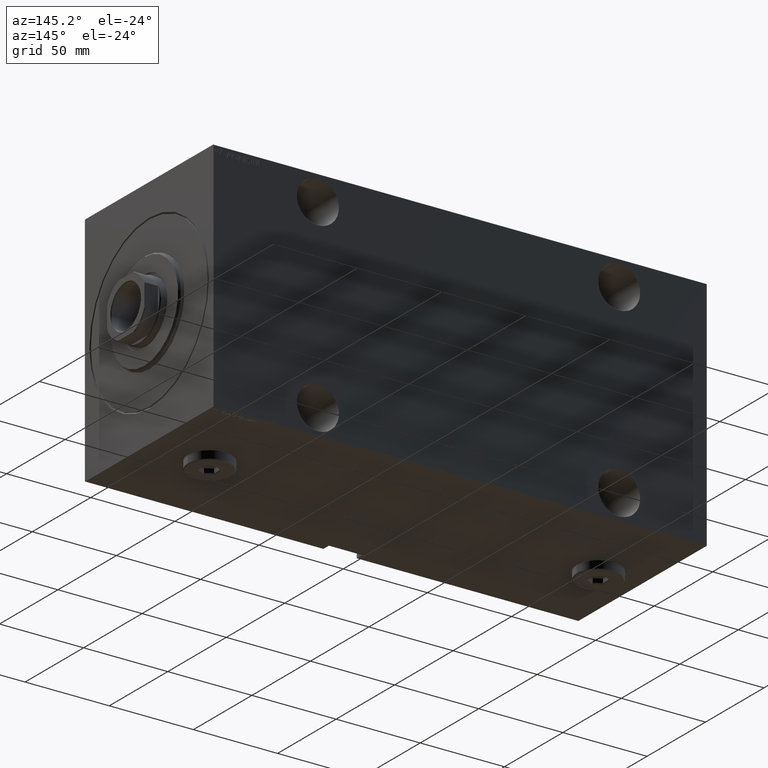
[diagram: clean part render]
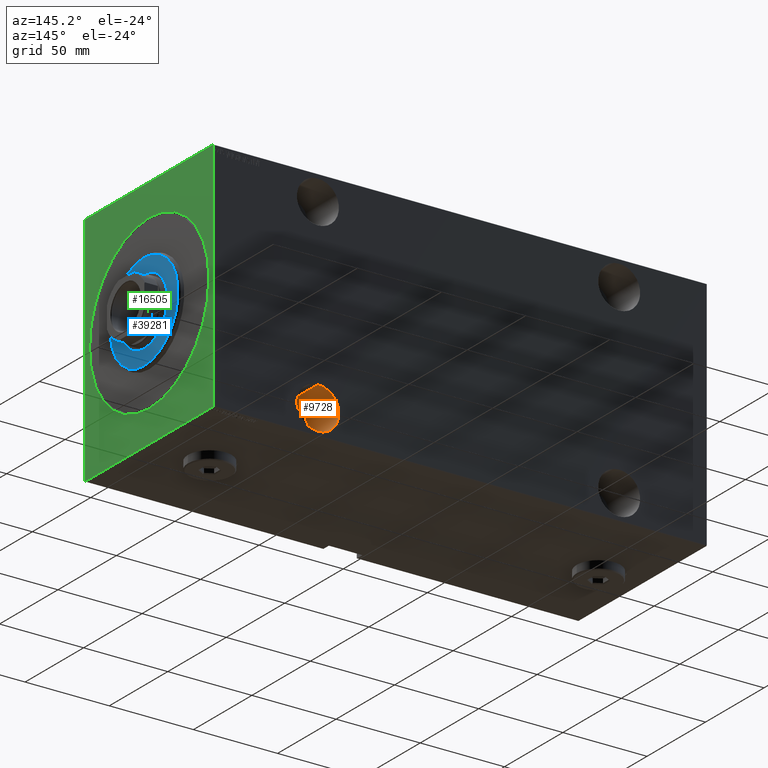
[diagram: same view with three faces highlighted in distinct colors, each labeled with its STEP entity id]
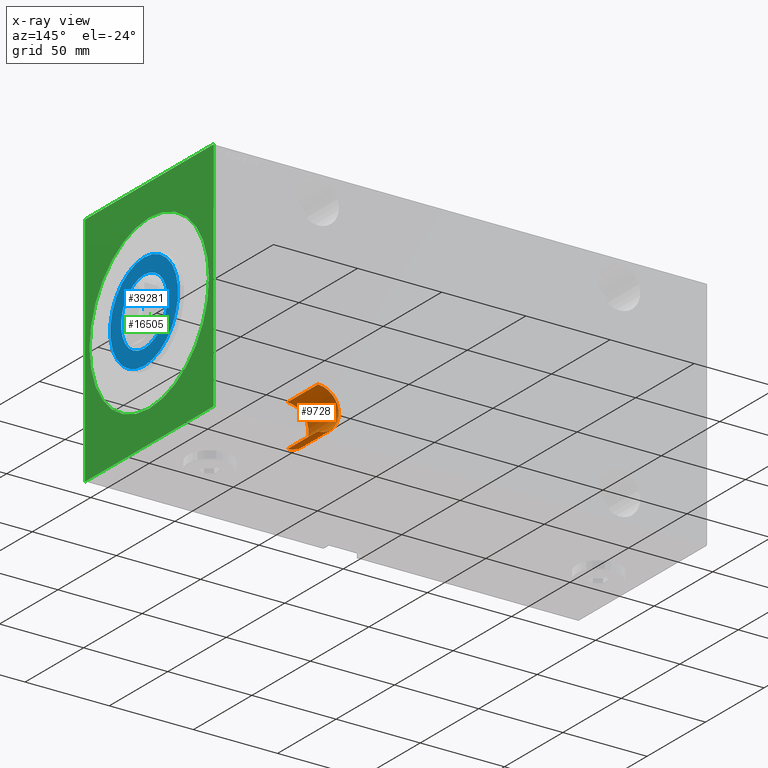
[diagram: x-ray of the same camera — body ghosted, the three highlighted faces saturated]
A machine part, auxiliary view with three faces highlighted in distinct colors.
The next image is the same camera in x-ray (body ghosted, the three faces saturated) — at least one of them is partly hidden behind the body in this view.
Their STEP definitions:

[orange] entity #9728 — the highlighted cylindrical surface (edge-blend (fillet) strip) has radius 12.5 mm, axis along (0, 1, -0).
#270 = ORIENTED_EDGE ( 'NONE', *, *, #5358, .F. ) ;
#1605 = EDGE_LOOP ( 'NONE', ( #33173, #270, #13426, #40558 ) ) ;
#1936 = CARTESIAN_POINT ( 'NONE',  ( 61.99999999999998579, -28.99999999999999289, -42.49999999999999289 ) ) ;
#4076 = VERTEX_POINT ( 'NONE', #35911 ) ;
#4620 = CIRCLE ( 'NONE', #26823, 12.49999999999999645 ) ;
#4919 = VERTEX_POINT ( 'NONE', #25877 ) ;
#5358 = EDGE_CURVE ( 'NONE', #4919, #14226, #39745, .T. ) ;
#5719 = EDGE_CURVE ( 'NONE', #39864, #4076, #4620, .T. ) ;
#5781 = DIRECTION ( 'NONE',  ( 0.000000000000000000, 0.000000000000000000, -1.000000000000000000 ) ) ;
#9018 = CARTESIAN_POINT ( 'NONE',  ( 61.99999999999998579, -54.99999999999999289, -54.99999999999999289 ) ) ;
#9728 = ADVANCED_FACE ( 'NONE', ( #31298 ), #35570, .F. ) ;
#12587 = AXIS2_PLACEMENT_3D ( 'NONE', #17826, #38923, #42050 ) ;
#12727 = DIRECTION ( 'NONE',  ( -0.000000000000000000, -1.000000000000000000, -0.000000000000000000 ) ) ;
#13426 = ORIENTED_EDGE ( 'NONE', *, *, #33145, .T. ) ;
#14226 = VERTEX_POINT ( 'NONE', #1936 ) ;
#17826 = CARTESIAN_POINT ( 'NONE',  ( 61.99999999999998579, -28.99999999999999289, -54.99999999999999289 ) ) ;
#20340 = DIRECTION ( 'NONE',  ( 0.000000000000000000, -1.000000000000000000, 0.000000000000000000 ) ) ;
#21652 = CARTESIAN_POINT ( 'NONE',  ( 61.99999999999998579, -28.99999999999999289, -42.49999999999999289 ) ) ;
#21816 = AXIS2_PLACEMENT_3D ( 'NONE', #36531, #20340, #5781 ) ;
#25877 = CARTESIAN_POINT ( 'NONE',  ( 61.99999999999998579, -28.99999999999999289, -67.49999999999998579 ) ) ;
#26823 = AXIS2_PLACEMENT_3D ( 'NONE', #9018, #43120, #42677 ) ;
#29593 = LINE ( 'NONE', #29816, #33836 ) ;
#29816 = CARTESIAN_POINT ( 'NONE',  ( 61.99999999999998579, -28.99999999999999289, -67.49999999999998579 ) ) ;
#31298 = FACE_OUTER_BOUND ( 'NONE', #1605, .T. ) ;
#31760 = LINE ( 'NONE', #21652, #35554 ) ;
#33145 = EDGE_CURVE ( 'NONE', #4919, #39864, #29593, .T. ) ;
#33173 = ORIENTED_EDGE ( 'NONE', *, *, #44249, .F. ) ;
#33836 = VECTOR ( 'NONE', #12727, 1000.000000000000000 ) ;
#35554 = VECTOR ( 'NONE', #42073, 1000.000000000000000 ) ;
#35570 = CYLINDRICAL_SURFACE ( 'NONE', #12587, 12.49999999999999645 ) ;
#35911 = CARTESIAN_POINT ( 'NONE',  ( 61.99999999999998579, -54.99999999999999289, -42.49999999999999289 ) ) ;
#36531 = CARTESIAN_POINT ( 'NONE',  ( 61.99999999999998579, -28.99999999999999289, -54.99999999999999289 ) ) ;
#38923 = DIRECTION ( 'NONE',  ( -0.000000000000000000, -1.000000000000000000, -0.000000000000000000 ) ) ;
#39586 = CARTESIAN_POINT ( 'NONE',  ( 61.99999999999998579, -54.99999999999999289, -67.49999999999998579 ) ) ;
#39745 = CIRCLE ( 'NONE', #21816, 12.49999999999999645 ) ;
#39864 = VERTEX_POINT ( 'NONE', #39586 ) ;
#40558 = ORIENTED_EDGE ( 'NONE', *, *, #5719, .T. ) ;
#42050 = DIRECTION ( 'NONE',  ( 0.000000000000000000, 0.000000000000000000, -1.000000000000000000 ) ) ;
#42073 = DIRECTION ( 'NONE',  ( -0.000000000000000000, -1.000000000000000000, -0.000000000000000000 ) ) ;
#42677 = DIRECTION ( 'NONE',  ( 0.000000000000000000, 0.000000000000000000, -1.000000000000000000 ) ) ;
#43120 = DIRECTION ( 'NONE',  ( 0.000000000000000000, -1.000000000000000000, 0.000000000000000000 ) ) ;
#44249 = EDGE_CURVE ( 'NONE', #14226, #4076, #31760, .T. ) ;

[blue] entity #39281 — the highlighted planar face has unit normal (1, 0, 0).
#309 = AXIS2_PLACEMENT_3D ( 'NONE', #2258, #43541, #12136 ) ;
#1146 = AXIS2_PLACEMENT_3D ( 'NONE', #1683, #11323, #5052 ) ;
#1683 = CARTESIAN_POINT ( 'NONE',  ( 3.000000000000000000, 0.000000000000000000, 0.000000000000000000 ) ) ;
#1710 = AXIS2_PLACEMENT_3D ( 'NONE', #27737, #24571, #20557 ) ;
#2258 = CARTESIAN_POINT ( 'NONE',  ( 3.000000000000000000, 0.000000000000000000, 0.000000000000000000 ) ) ;
#3037 = CARTESIAN_POINT ( 'NONE',  ( 3.000000000000000000, 0.000000000000000000, 28.99999999999998224 ) ) ;
#4352 = ORIENTED_EDGE ( 'NONE', *, *, #12503, .T. ) ;
#4488 = EDGE_CURVE ( 'NONE', #16699, #21874, #19642, .T. ) ;
#5052 = DIRECTION ( 'NONE',  ( 0.000000000000000000, 0.000000000000000000, -1.000000000000000000 ) ) ;
#8910 = VERTEX_POINT ( 'NONE', #14841 ) ;
#8998 = FACE_OUTER_BOUND ( 'NONE', #43326, .T. ) ;
#9220 = PLANE ( 'NONE',  #309 ) ;
#10029 = DIRECTION ( 'NONE',  ( 0.000000000000000000, 0.000000000000000000, -1.000000000000000000 ) ) ;
#10243 = CARTESIAN_POINT ( 'NONE',  ( 3.000000000000000000, 0.000000000000000000, 0.000000000000000000 ) ) ;
#11323 = DIRECTION ( 'NONE',  ( -1.000000000000000000, 0.000000000000000000, -0.000000000000000000 ) ) ;
#12136 = DIRECTION ( 'NONE',  ( 0.000000000000000000, 0.000000000000000000, -1.000000000000000000 ) ) ;
#12503 = EDGE_CURVE ( 'NONE', #35783, #8910, #28458, .T. ) ;
#14480 = ORIENTED_EDGE ( 'NONE', *, *, #4488, .T. ) ;
#14841 = CARTESIAN_POINT ( 'NONE',  ( 3.000000000000000000, 2.418677428316022331E-15, -19.75000000000000000 ) ) ;
#16699 = VERTEX_POINT ( 'NONE', #3037 ) ;
#19642 = CIRCLE ( 'NONE', #1710, 28.99999999999998224 ) ;
#20490 = CIRCLE ( 'NONE', #1146, 19.75000000000000000 ) ;
#20557 = DIRECTION ( 'NONE',  ( 0.000000000000000000, 0.000000000000000000, -1.000000000000000000 ) ) ;
#21874 = VERTEX_POINT ( 'NONE', #39184 ) ;
#22019 = AXIS2_PLACEMENT_3D ( 'NONE', #43457, #25971, #39882 ) ;
#22721 = EDGE_LOOP ( 'NONE', ( #4352, #30116 ) ) ;
#23055 = DIRECTION ( 'NONE',  ( 1.000000000000000000, -0.000000000000000000, 0.000000000000000000 ) ) ;
#24292 = EDGE_CURVE ( 'NONE', #21874, #16699, #36535, .T. ) ;
#24571 = DIRECTION ( 'NONE',  ( 1.000000000000000000, -0.000000000000000000, 0.000000000000000000 ) ) ;
#25971 = DIRECTION ( 'NONE',  ( -1.000000000000000000, 0.000000000000000000, -0.000000000000000000 ) ) ;
#27737 = CARTESIAN_POINT ( 'NONE',  ( 3.000000000000000000, 0.000000000000000000, 0.000000000000000000 ) ) ;
#28458 = CIRCLE ( 'NONE', #22019, 19.75000000000000000 ) ;
#28640 = ORIENTED_EDGE ( 'NONE', *, *, #24292, .T. ) ;
#30091 = AXIS2_PLACEMENT_3D ( 'NONE', #10243, #23055, #10029 ) ;
#30116 = ORIENTED_EDGE ( 'NONE', *, *, #43607, .T. ) ;
#31697 = CARTESIAN_POINT ( 'NONE',  ( 3.000000000000000000, 0.000000000000000000, 19.75000000000000000 ) ) ;
#35783 = VERTEX_POINT ( 'NONE', #31697 ) ;
#36535 = CIRCLE ( 'NONE', #30091, 28.99999999999998224 ) ;
#39184 = CARTESIAN_POINT ( 'NONE',  ( 3.000000000000000000, 3.612708057484690026E-15, -28.99999999999998224 ) ) ;
#39281 = ADVANCED_FACE ( 'NONE', ( #8998, #39748 ), #9220, .T. ) ;
#39748 = FACE_BOUND ( 'NONE', #22721, .T. ) ;
#39882 = DIRECTION ( 'NONE',  ( 0.000000000000000000, 0.000000000000000000, -1.000000000000000000 ) ) ;
#43326 = EDGE_LOOP ( 'NONE', ( #14480, #28640 ) ) ;
#43457 = CARTESIAN_POINT ( 'NONE',  ( 3.000000000000000000, 0.000000000000000000, 0.000000000000000000 ) ) ;
#43541 = DIRECTION ( 'NONE',  ( 1.000000000000000000, -0.000000000000000000, 0.000000000000000000 ) ) ;
#43607 = EDGE_CURVE ( 'NONE', #8910, #35783, #20490, .T. ) ;

[green] entity #16505 — the highlighted planar face has unit normal (-1, 0, 0).
#823 = FACE_OUTER_BOUND ( 'NONE', #44218, .T. ) ;
#1172 = VERTEX_POINT ( 'NONE', #42401 ) ;
#1542 = CARTESIAN_POINT ( 'NONE',  ( 0.000000000000000000, -54.99999999999999289, -70.00000000000001421 ) ) ;
#3415 = CARTESIAN_POINT ( 'NONE',  ( 0.000000000000000000, 54.99999999999999289, 70.00000000000000000 ) ) ;
#3841 = EDGE_CURVE ( 'NONE', #20970, #34366, #36854, .T. ) ;
#4201 = ORIENTED_EDGE ( 'NONE', *, *, #32121, .F. ) ;
#5302 = EDGE_CURVE ( 'NONE', #10404, #21561, #34048, .T. ) ;
#5658 = DIRECTION ( 'NONE',  ( 0.000000000000000000, 0.000000000000000000, -1.000000000000000000 ) ) ;
#6252 = CARTESIAN_POINT ( 'NONE',  ( 0.000000000000000000, 54.69999999999999574, 70.00000000000000000 ) ) ;
#7567 = CARTESIAN_POINT ( 'NONE',  ( 0.000000000000000000, -54.99999999999999289, 69.70000000000000284 ) ) ;
#7628 = LINE ( 'NONE', #41949, #28373 ) ;
#8226 = CARTESIAN_POINT ( 'NONE',  ( 0.000000000000000000, 54.69999999999999574, -70.00000000000001421 ) ) ;
#9339 = ORIENTED_EDGE ( 'NONE', *, *, #3841, .T. ) ;
#10404 = VERTEX_POINT ( 'NONE', #7567 ) ;
#10857 = ORIENTED_EDGE ( 'NONE', *, *, #43093, .F. ) ;
#10880 = CARTESIAN_POINT ( 'NONE',  ( 0.000000000000000000, 0.000000000000000000, 0.000000000000000000 ) ) ;
#10888 = VECTOR ( 'NONE', #37771, 1000.000000000000000 ) ;
#11083 = LINE ( 'NONE', #21865, #25712 ) ;
#11127 = ORIENTED_EDGE ( 'NONE', *, *, #5302, .T. ) ;
#11410 = LINE ( 'NONE', #1542, #31778 ) ;
#11549 = DIRECTION ( 'NONE',  ( 1.000000000000000000, 0.000000000000000000, 0.000000000000000000 ) ) ;
#13113 = CARTESIAN_POINT ( 'NONE',  ( 0.000000000000000000, 55.00000000000002132, -69.70000000000000284 ) ) ;
#13519 = DIRECTION ( 'NONE',  ( 0.000000000000000000, -1.982541115402065110E-16, 1.000000000000000000 ) ) ;
#14152 = CARTESIAN_POINT ( 'NONE',  ( 0.000000000000000000, -54.69999999999999574, 69.99999999999998579 ) ) ;
#14233 = VECTOR ( 'NONE', #34390, 1000.000000000000000 ) ;
#14339 = CARTESIAN_POINT ( 'NONE',  ( 0.000000000000000000, 54.69999999999999574, 70.00000000000000000 ) ) ;
#14495 = DIRECTION ( 'NONE',  ( 0.000000000000000000, 0.000000000000000000, -1.000000000000000000 ) ) ;
#14683 = CARTESIAN_POINT ( 'NONE',  ( 0.000000000000000000, 0.000000000000000000, 0.000000000000000000 ) ) ;
#16453 = EDGE_LOOP ( 'NONE', ( #16766, #9339 ) ) ;
#16505 = ADVANCED_FACE ( 'NONE', ( #38751, #823 ), #41878, .F. ) ;
#16762 = EDGE_CURVE ( 'NONE', #18983, #19706, #11083, .T. ) ;
#16766 = ORIENTED_EDGE ( 'NONE', *, *, #20155, .T. ) ;
#16904 = CARTESIAN_POINT ( 'NONE',  ( 0.000000000000000000, -54.99999999999999289, 69.99999999999998579 ) ) ;
#17074 = AXIS2_PLACEMENT_3D ( 'NONE', #10880, #11549, #27951 ) ;
#17157 = CARTESIAN_POINT ( 'NONE',  ( 0.000000000000000000, 0.000000000000000000, 50.99999999999993605 ) ) ;
#17878 = CARTESIAN_POINT ( 'NONE',  ( 0.000000000000000000, 0.000000000000000000, 0.000000000000000000 ) ) ;
#18273 = EDGE_CURVE ( 'NONE', #42633, #21561, #34174, .T. ) ;
#18983 = VERTEX_POINT ( 'NONE', #42771 ) ;
#19706 = VERTEX_POINT ( 'NONE', #38320 ) ;
#20142 = ORIENTED_EDGE ( 'NONE', *, *, #28415, .F. ) ;
#20155 = EDGE_CURVE ( 'NONE', #34366, #20970, #31421, .T. ) ;
#20970 = VERTEX_POINT ( 'NONE', #33333 ) ;
#21078 = VECTOR ( 'NONE', #30016, 1000.000000000000114 ) ;
#21089 = LINE ( 'NONE', #14339, #32447 ) ;
#21561 = VERTEX_POINT ( 'NONE', #14152 ) ;
#21865 = CARTESIAN_POINT ( 'NONE',  ( 0.000000000000000000, -54.70000000000002416, -70.00000000000001421 ) ) ;
#24503 = ORIENTED_EDGE ( 'NONE', *, *, #27617, .T. ) ;
#25108 = DIRECTION ( 'NONE',  ( 0.000000000000000000, 1.000000000000000000, 0.000000000000000000 ) ) ;
#25712 = VECTOR ( 'NONE', #28618, 999.9999999999998863 ) ;
#26913 = ORIENTED_EDGE ( 'NONE', *, *, #32439, .T. ) ;
#27481 = LINE ( 'NONE', #13113, #41794 ) ;
#27617 = EDGE_CURVE ( 'NONE', #42633, #30149, #21089, .T. ) ;
#27677 = ORIENTED_EDGE ( 'NONE', *, *, #18273, .F. ) ;
#27951 = DIRECTION ( 'NONE',  ( 0.000000000000000000, 0.000000000000000000, -1.000000000000000000 ) ) ;
#28373 = VECTOR ( 'NONE', #13519, 1000.000000000000000 ) ;
#28415 = EDGE_CURVE ( 'NONE', #10404, #19706, #34199, .T. ) ;
#28618 = DIRECTION ( 'NONE',  ( -0.000000000000000000, -0.7071067811865802133, 0.7071067811865149322 ) ) ;
#29121 = ORIENTED_EDGE ( 'NONE', *, *, #16762, .T. ) ;
#30016 = DIRECTION ( 'NONE',  ( -0.000000000000000000, 0.7071067811865474617, 0.7071067811865474617 ) ) ;
#30149 = VERTEX_POINT ( 'NONE', #37739 ) ;
#31197 = DIRECTION ( 'NONE',  ( -0.000000000000000000, 0.7071067811865638930, -0.7071067811865311414 ) ) ;
#31421 = CIRCLE ( 'NONE', #17074, 50.99999999999993605 ) ;
#31567 = DIRECTION ( 'NONE',  ( 1.000000000000000000, 0.000000000000000000, 0.000000000000000000 ) ) ;
#31778 = VECTOR ( 'NONE', #25108, 1000.000000000000000 ) ;
#32121 = EDGE_CURVE ( 'NONE', #18983, #35155, #11410, .T. ) ;
#32439 = EDGE_CURVE ( 'NONE', #1172, #35155, #27481, .T. ) ;
#32447 = VECTOR ( 'NONE', #31197, 1000.000000000000000 ) ;
#32821 = DIRECTION ( 'NONE',  ( 1.000000000000000000, 0.000000000000000000, 0.000000000000000000 ) ) ;
#33333 = CARTESIAN_POINT ( 'NONE',  ( 0.000000000000000000, 6.245698675651492556E-15, -50.99999999999993605 ) ) ;
#33351 = DIRECTION ( 'NONE',  ( 0.000000000000000000, -0.7071067811865474617, -0.7071067811865474617 ) ) ;
#34048 = LINE ( 'NONE', #40542, #21078 ) ;
#34174 = LINE ( 'NONE', #3415, #14233 ) ;
#34199 = LINE ( 'NONE', #16904, #10888 ) ;
#34366 = VERTEX_POINT ( 'NONE', #17157 ) ;
#34390 = DIRECTION ( 'NONE',  ( 0.000000000000000000, -1.000000000000000000, -1.261617073437677999E-16 ) ) ;
#35155 = VERTEX_POINT ( 'NONE', #8226 ) ;
#36854 = CIRCLE ( 'NONE', #39712, 50.99999999999993605 ) ;
#37739 = CARTESIAN_POINT ( 'NONE',  ( 0.000000000000000000, 54.99999999999999289, 69.70000000000003126 ) ) ;
#37771 = DIRECTION ( 'NONE',  ( 0.000000000000000000, 0.000000000000000000, -1.000000000000000000 ) ) ;
#38320 = CARTESIAN_POINT ( 'NONE',  ( 0.000000000000000000, -54.99999999999999289, -69.70000000000008811 ) ) ;
#38609 = AXIS2_PLACEMENT_3D ( 'NONE', #17878, #31567, #14495 ) ;
#38751 = FACE_BOUND ( 'NONE', #16453, .T. ) ;
#39712 = AXIS2_PLACEMENT_3D ( 'NONE', #14683, #32821, #5658 ) ;
#40542 = CARTESIAN_POINT ( 'NONE',  ( 0.000000000000000000, -54.99999999999999289, 69.70000000000000284 ) ) ;
#41794 = VECTOR ( 'NONE', #33351, 1000.000000000000114 ) ;
#41878 = PLANE ( 'NONE',  #38609 ) ;
#41949 = CARTESIAN_POINT ( 'NONE',  ( 0.000000000000000000, 55.00000000000002132, -70.00000000000001421 ) ) ;
#42401 = CARTESIAN_POINT ( 'NONE',  ( 0.000000000000000000, 55.00000000000002132, -69.70000000000000284 ) ) ;
#42633 = VERTEX_POINT ( 'NONE', #6252 ) ;
#42771 = CARTESIAN_POINT ( 'NONE',  ( 0.000000000000000000, -54.70000000000002416, -70.00000000000001421 ) ) ;
#43093 = EDGE_CURVE ( 'NONE', #1172, #30149, #7628, .T. ) ;
#44218 = EDGE_LOOP ( 'NONE', ( #27677, #24503, #10857, #26913, #4201, #29121, #20142, #11127 ) ) ;